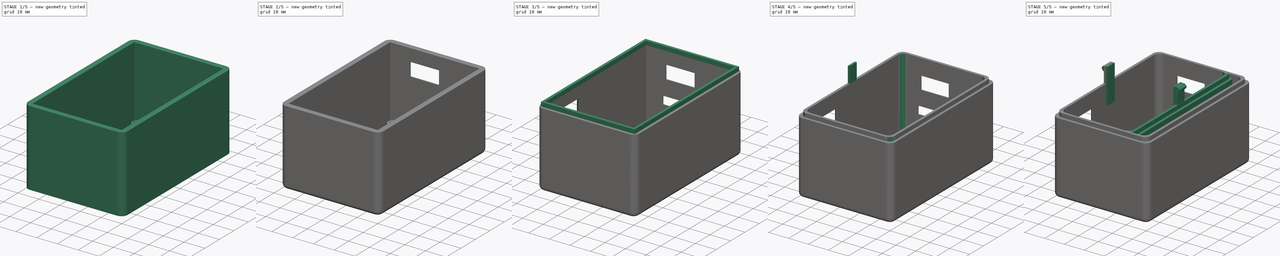
[diagram: build sequence overview — one tinted view per stage of 5, left to right]
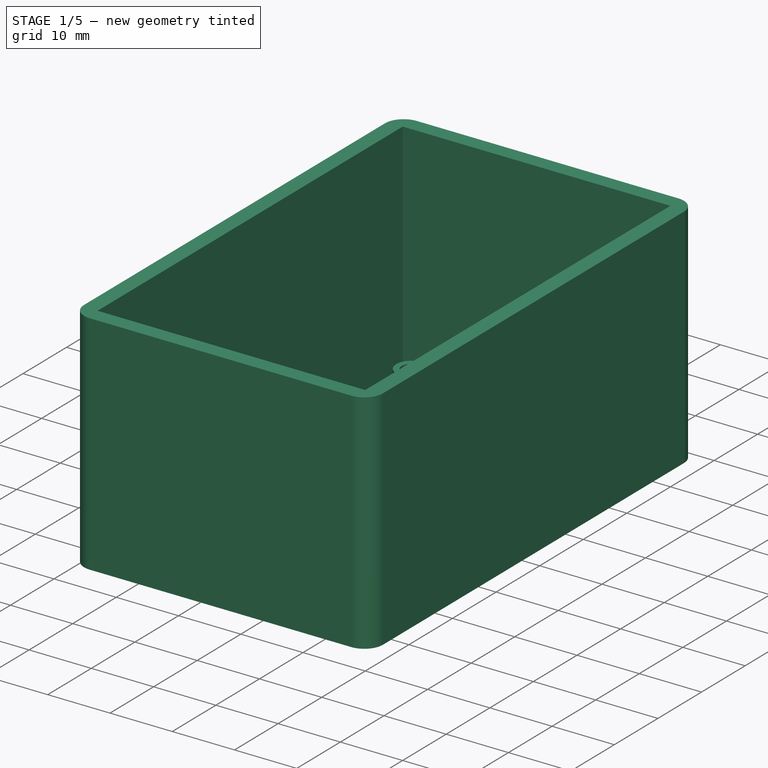
[diagram: stage 1 of 5 — iso view after this stage's code; geometry added in this stage tinted green]
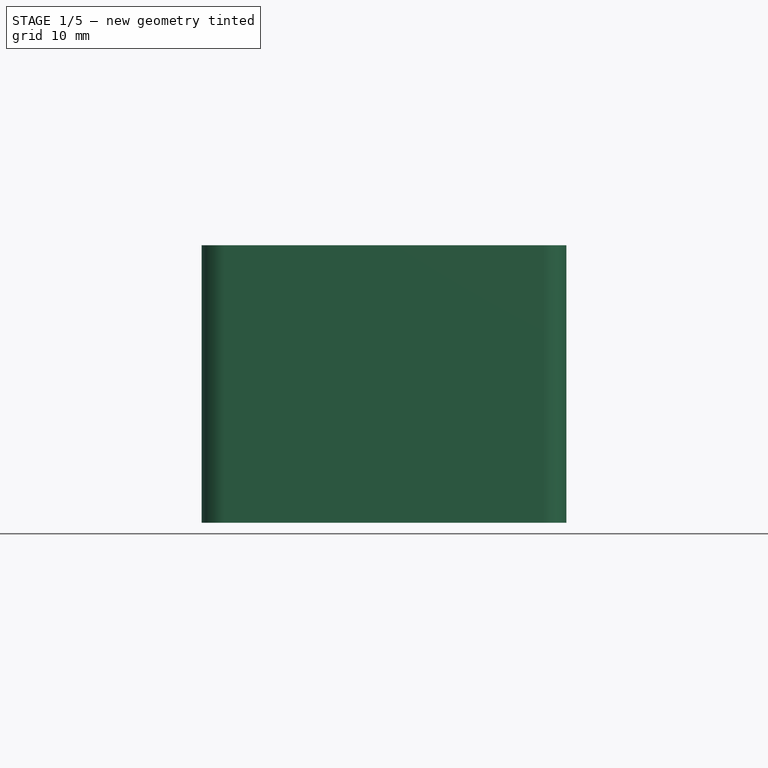
[diagram: stage 1 of 5 — front view after this stage's code; geometry added in this stage tinted green]
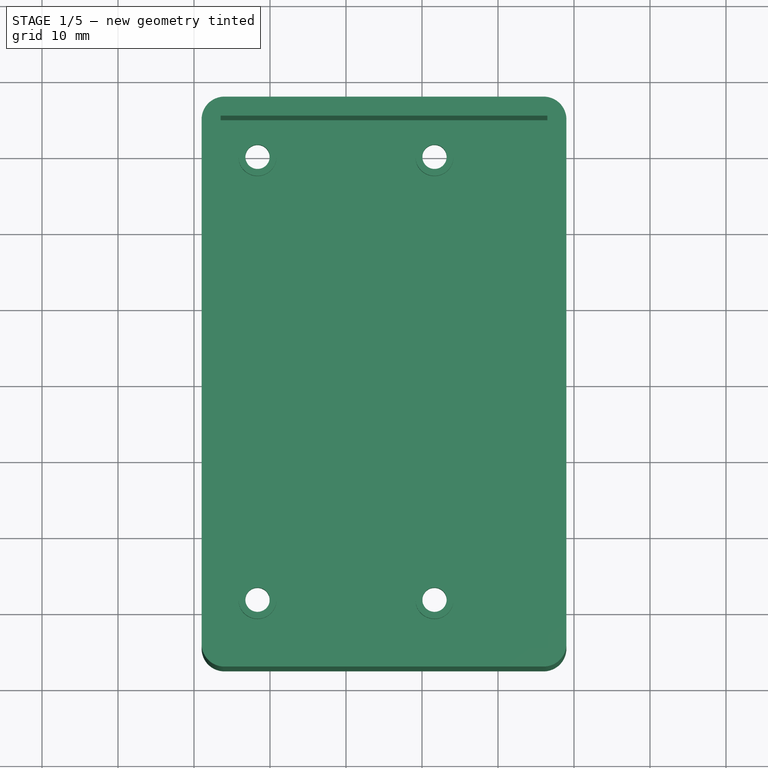
[diagram: stage 1 of 5 — top view after this stage's code; geometry added in this stage tinted green]
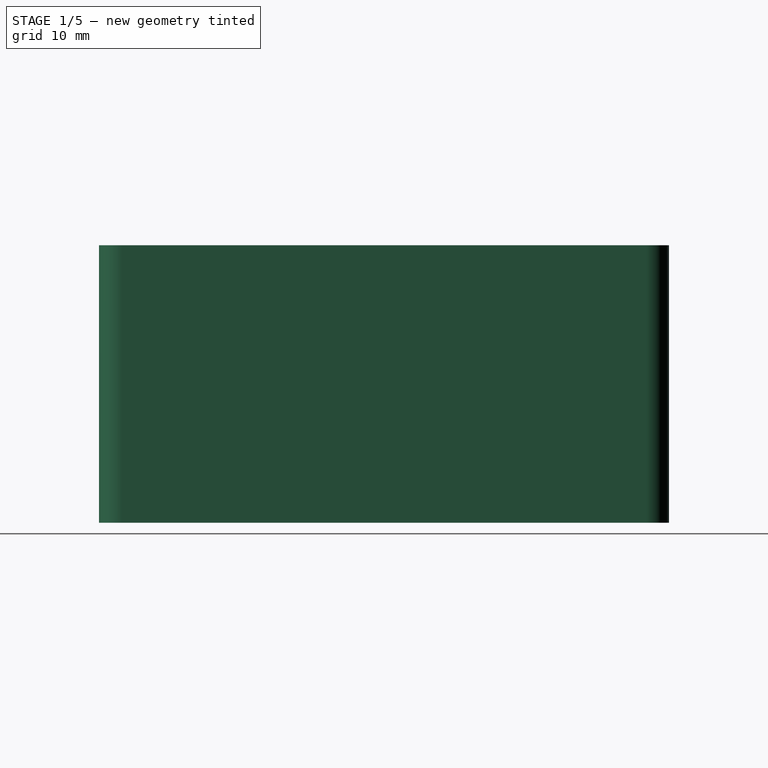
[diagram: stage 1 of 5 — right view after this stage's code; geometry added in this stage tinted green]
FCSTD DOCUMENT  (FreeCAD 0.16R)
Label: snap_case_bottom
License: All rights reserved
LicenseURL: http://en.wikipedia.org/wiki/All_rights_reserved
objects: Sketcher::SketchObject×11, PartDesign::Fillet×9, PartDesign::Pad×7, PartDesign::Pocket×7, PartDesign::Chamfer×6
note: 54 computed .brp shape members not serialized (recipe doc carries the construction recipe); baked Part::Feature solids carry a one-line shape summary decoded from their .brp

FEATURE [Sketcher::SketchObject] Sketch  label="base"
  sketch-geometry (8):
    g0: LineSegment [constr] StartX=-15 StartY=33.5 StartZ=0 EndX=15 EndY=33.5 EndZ=0
    g1: LineSegment [constr] StartX=15 StartY=33.5 StartZ=0 EndX=15 EndY=-33.5 EndZ=0
    g2: LineSegment [constr] StartX=15 StartY=-33.5 StartZ=0 EndX=-15 EndY=-33.5 EndZ=0
    g3: LineSegment [constr] StartX=-15 StartY=-33.5 StartZ=0 EndX=-15 EndY=33.5 EndZ=0
    g4: LineSegment StartX=-19 StartY=37.5 StartZ=0 EndX=29 EndY=37.5 EndZ=0
    g5: LineSegment StartX=29 StartY=37.5 StartZ=0 EndX=29 EndY=-37.5 EndZ=0
    g6: LineSegment StartX=29 StartY=-37.5 StartZ=0 EndX=-19 EndY=-37.5 EndZ=0
    g7: LineSegment StartX=-19 StartY=-37.5 StartZ=0 EndX=-19 EndY=37.5 EndZ=0
  constraints (24):
    c: Coincident(g0,g1)
    c: Coincident(g1,g2)
    c: Coincident(g2,g3)
    c: Coincident(g3,g0)
    c: Horizontal(g0)
    c: Horizontal(g2)
    c: Vertical(g1)
    c: Vertical(g3)
    c: Symmetric(g0,g0,g-2)
    c: Symmetric(g2,g0,g-1)
    c: DistanceX(g0,g0) = 30
    c: DistanceY(g3,g3) = 67
    c: Coincident(g4,g5)
    c: Coincident(g5,g6)
    c: Coincident(g6,g7)
    c: Coincident(g7,g4)
    c: Horizontal(g4)
    c: Horizontal(g6)
    c: Vertical(g5)
    c: Vertical(g7)
    c: DistanceX(g4,g4) = 48
    c: DistanceX(g4,g-1) = 19
    c: Symmetric(g4,g6,g-1)
    c: DistanceY(g7,g7) = 75
FEATURE [PartDesign::Pad] Pad
  Length = 1.5
  Length2 = 100
  Sketch = -> Sketch
  Type = 0
FEATURE [Sketcher::SketchObject] Sketch002  label="stand"
  Placement = pos=(0,0,1.5) rot=(0,0,1;0rad)
  Support = -> Pad [Face6]
  sketch-geometry (12):
    g0: LineSegment [constr] StartX=-15 StartY=33.5 StartZ=0 EndX=15 EndY=33.5 EndZ=0
    g1: LineSegment [constr] StartX=15 StartY=33.5 StartZ=0 EndX=15 EndY=-31.5 EndZ=0
    g2: LineSegment [constr] StartX=15 StartY=-31.5 StartZ=0 EndX=-15 EndY=-31.5 EndZ=0
    g3: LineSegment [constr] StartX=-15 StartY=-31.5 StartZ=0 EndX=-15 EndY=33.5 EndZ=0
    g4: LineSegment [constr] StartX=-15 StartY=33.5 StartZ=0 EndX=-11.6412 EndY=30.1412 EndZ=0
    g5: LineSegment [constr] StartX=15 StartY=33.5 StartZ=0 EndX=11.6412 EndY=30.1412 EndZ=0
    g6: LineSegment [constr] StartX=15 StartY=-31.5 StartZ=0 EndX=11.6412 EndY=-28.1412 EndZ=0
    g7: LineSegment [constr] StartX=-15 StartY=-31.5 StartZ=0 EndX=-11.6412 EndY=-28.1412 EndZ=0
    g8: Circle CenterX=-11.6412 CenterY=30.1412 CenterZ=0 NormalX=0 NormalY=0 NormalZ=1 Radius=2.5
    g9: Circle CenterX=-11.6412 CenterY=-28.1412 CenterZ=0 NormalX=0 NormalY=0 NormalZ=1 Radius=2.5
    g10: Circle CenterX=11.6412 CenterY=30.1412 CenterZ=0 NormalX=0 NormalY=0 NormalZ=1 Radius=2.5
    g11: Circle CenterX=11.6412 CenterY=-28.1412 CenterZ=0 NormalX=0 NormalY=0 NormalZ=1 Radius=2.5
  constraints (32):
    c: Coincident(g0,g1)
    c: Coincident(g1,g2)
    c: Coincident(g2,g3)
    c: Coincident(g3,g0)
    c: Horizontal(g0)
    c: Horizontal(g2)
    c: Vertical(g1)
    c: Vertical(g3)
    c: Symmetric(g0,g0,g-2)
    c: DistanceX(g0,g0) = 30
    c: DistanceY(g3,g3) = 65
    c: Coincident(g4,g0)
    c: Coincident(g5,g0)
    c: Coincident(g6,g1)
    c: Coincident(g7,g2)
    c: Equal(g4,g5)
    c: Equal(g5,g6)
    c: Equal(g6,g7)
    c: Distance(g6) = 4.75
    c: Coincident(g8,g4)
    c: Coincident(g9,g7)
    c: Coincident(g11,g6)
    c: Coincident(g10,g5)
    c: Angle(g0,g5) = 0.785398
    c: Angle(g4,g0) = 0.785398
    c: Angle(g2,g7) = 0.785398
    c: Angle(g6,g2) = 0.785398
    c: Equal(g11,g10)
    c: Equal(g8,g9)
    c: Radius(g10) = 2.5
    c: Equal(g10,g8)
    c: DistanceY(g-1,g0) = 33.5
FEATURE [PartDesign::Pad] Pad001
  Length = 3
  Length2 = 100
  Sketch = -> Sketch002
  Type = 0
FEATURE [Sketcher::SketchObject] Sketch003  label="screw holes"
  Placement = pos=(0,0,0) rot=(1,0,0;3.14159rad)
  Support = -> Pad001 [Face4]
  sketch-geometry (12):
    g0: LineSegment [constr] StartX=-15 StartY=31.5 StartZ=0 EndX=15 EndY=31.5 EndZ=0
    g1: LineSegment [constr] StartX=15 StartY=31.5 StartZ=0 EndX=15 EndY=-33.5 EndZ=0
    g2: LineSegment [constr] StartX=15 StartY=-33.5 StartZ=0 EndX=-15 EndY=-33.5 EndZ=0
    g3: LineSegment [constr] StartX=-15 StartY=-33.5 StartZ=0 EndX=-15 EndY=31.5 EndZ=0
    g4: LineSegment [constr] StartX=-15 StartY=31.5 StartZ=0 EndX=-11.6412 EndY=28.1412 EndZ=0
    g5: LineSegment [constr] StartX=15 StartY=31.5 StartZ=0 EndX=11.6412 EndY=28.1412 EndZ=0
    g6: LineSegment [constr] StartX=-15 StartY=-33.5 StartZ=0 EndX=-11.6412 EndY=-30.1412 EndZ=0
    g7: LineSegment [constr] StartX=15 StartY=-33.5 StartZ=0 EndX=11.6412 EndY=-30.1412 EndZ=0
    g8: Circle CenterX=-11.6412 CenterY=28.1412 CenterZ=0 NormalX=0 NormalY=0 NormalZ=1 Radius=1.6
    g9: Circle CenterX=11.6412 CenterY=28.1412 CenterZ=0 NormalX=0 NormalY=0 NormalZ=1 Radius=1.6
    g10: Circle CenterX=-11.6412 CenterY=-30.1412 CenterZ=0 NormalX=0 NormalY=0 NormalZ=1 Radius=1.6
    g11: Circle CenterX=11.6412 CenterY=-30.1412 CenterZ=0 NormalX=0 NormalY=0 NormalZ=1 Radius=1.6
  constraints (32):
    c: Coincident(g0,g1)
    c: Coincident(g1,g2)
    c: Coincident(g2,g3)
    c: Coincident(g3,g0)
    c: Horizontal(g0)
    c: Horizontal(g2)
    c: Vertical(g1)
    c: Vertical(g3)
    c: DistanceX(g0,g0) = 30
    c: DistanceY(g3,g3) = 65
    c: Symmetric(g0,g0,g-2)
    c: Coincident(g4,g0)
    c: Distance(g4) = 4.75
    c: Angle(g4,g0) = 0.785398
    c: Coincident(g5,g0)
    c: Distance(g5) = 4.75
    c: Angle(g0,g5) = 0.785398
    c: Coincident(g6,g2)
    c: Angle(g2,g6) = 0.785398
    c: Distance(g6) = 4.75
    c: Coincident(g7,g1)
    c: Distance(g7) = 4.75
    c: Angle(g7,g2) = 0.785398
    c: Equal(g11,g9)
    c: Equal(g9,g8)
    c: Equal(g8,g10)
    c: Radius(g9) = 1.6
    c: Coincident(g8,g4)
    c: Coincident(g9,g5)
    c: Coincident(g11,g7)
    c: Coincident(g10,g6)
    c: DistanceY(g1,g-1) = 33.5
FEATURE [PartDesign::Pocket] Pocket
  Length = 1
  Midplane = true
  Sketch = -> Sketch003
  Type = 1
FEATURE [Sketcher::SketchObject] Sketch004  label="wall"
  Placement = pos=(0,0,1.5) rot=(0,0,1;0rad)
  Support = -> Pocket [Face5]
  sketch-geometry (8):
    g0: LineSegment StartX=-19 StartY=37.5 StartZ=0 EndX=29 EndY=37.5 EndZ=0
    g1: LineSegment StartX=29 StartY=37.5 StartZ=0 EndX=29 EndY=-37.5 EndZ=0
    g2: LineSegment StartX=29 StartY=-37.5 StartZ=0 EndX=-19 EndY=-37.5 EndZ=0
    g3: LineSegment StartX=-19 StartY=-37.5 StartZ=0 EndX=-19 EndY=37.5 EndZ=0
    g4: LineSegment StartX=-16.5 StartY=35 StartZ=0 EndX=-16.5 EndY=-35 EndZ=0
    g5: LineSegment StartX=26.5 StartY=35 StartZ=0 EndX=26.5 EndY=-35 EndZ=0
    g6: LineSegment StartX=-16.5 StartY=35 StartZ=0 EndX=26.5 EndY=35 EndZ=0
    g7: LineSegment StartX=-16.5 StartY=-35 StartZ=0 EndX=26.5 EndY=-35 EndZ=0
  constraints (24):
    c: Coincident(g0,g1)
    c: Coincident(g1,g2)
    c: Coincident(g2,g3)
    c: Coincident(g3,g0)
    c: Horizontal(g0)
    c: Horizontal(g2)
    c: Vertical(g1)
    c: Vertical(g3)
    c: DistanceX(g0,g0) = 48
    c: DistanceY(g3,g3) = 75
    c: Symmetric(g0,g2,g-1)
    c: DistanceX(g0,g-1) = 19
    c: Vertical(g4)
    c: Symmetric(g4,g4,g-1)
    c: DistanceY(g4,g4) = 70
    c: DistanceX(g0,g4) = 2.5
    c: Vertical(g5)
    c: DistanceY(g5,g5) = 70
    c: Symmetric(g5,g5,g-1)
    c: DistanceX(g5,g0) = 2.5
    c: Coincident(g6,g4)
    c: Coincident(g6,g5)
    c: Coincident(g7,g4)
    c: Coincident(g7,g5)
FEATURE [PartDesign::Pad] Pad002
  Length = 35
  Length2 = 100
  Sketch = -> Sketch004
  Type = 0
FEATURE [PartDesign::Fillet] Fillet
  Base = -> Pad002 [Edge31,Edge15,Edge28,Edge12,Edge25,Edge9,Edge27,Edge11]
  Radius = 3
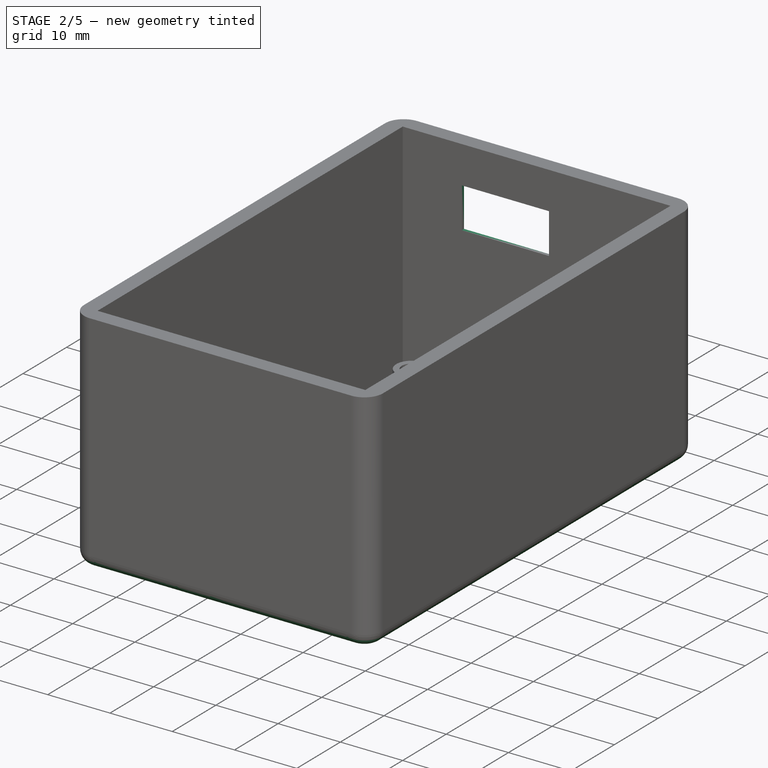
[diagram: stage 2 of 5 — iso view after this stage's code; geometry added in this stage tinted green]
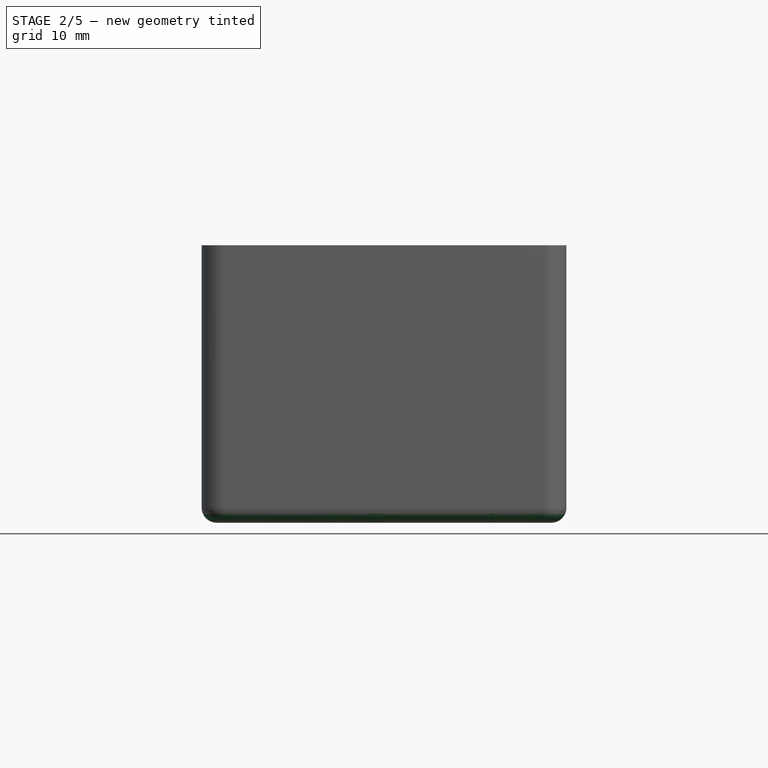
[diagram: stage 2 of 5 — front view after this stage's code; geometry added in this stage tinted green]
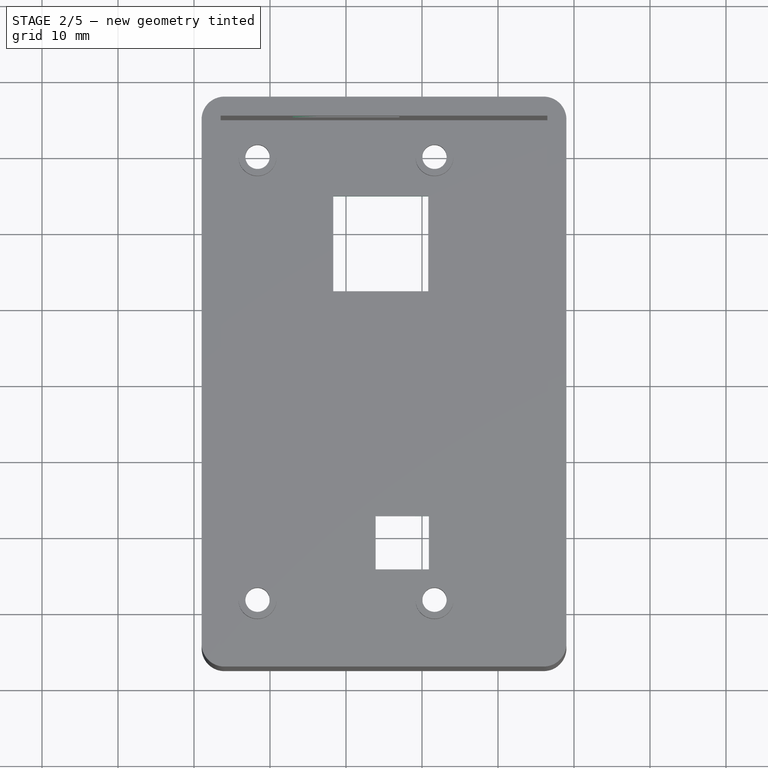
[diagram: stage 2 of 5 — top view after this stage's code; geometry added in this stage tinted green]
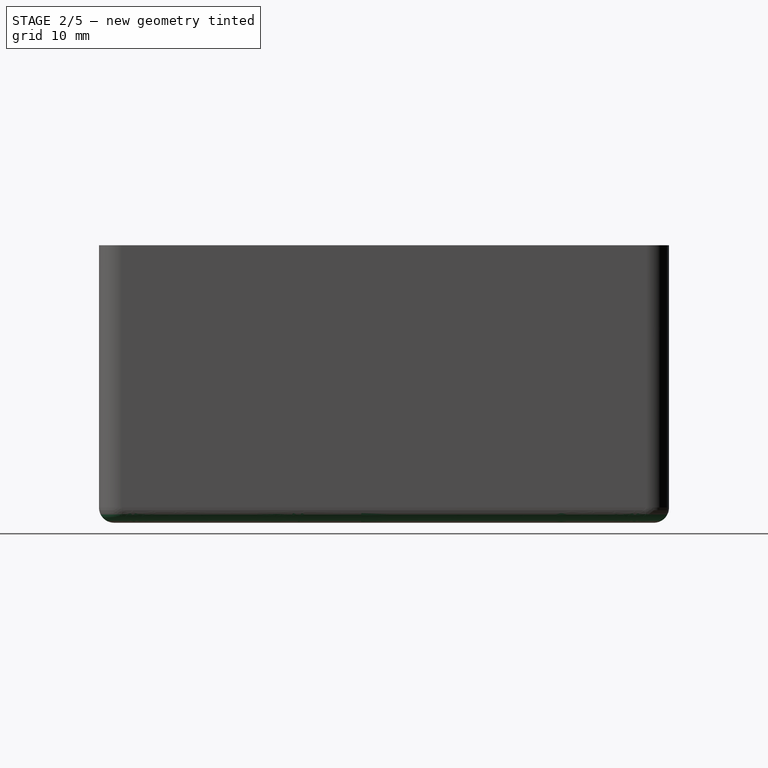
[diagram: stage 2 of 5 — right view after this stage's code; geometry added in this stage tinted green]
FEATURE [PartDesign::Fillet] Fillet001
  Base = -> Fillet [Edge1,Edge4,Edge2,Edge3,Edge5,Edge7,Edge8,Edge6]
  Radius = 2
FEATURE [Sketcher::SketchObject] Sketch005  label="power button"
  Placement = pos=(0,0,1.5) rot=(0,0,1;0rad)
  Support = -> Fillet001 [Face35]
  sketch-geometry (8):
    g0: LineSegment [constr] StartX=-15 StartY=33.5 StartZ=0 EndX=15 EndY=33.5 EndZ=0
    g1: LineSegment [constr] StartX=15 StartY=33.5 StartZ=0 EndX=15 EndY=-33.5 EndZ=0
    g2: LineSegment [constr] StartX=15 StartY=-33.5 StartZ=0 EndX=-15 EndY=-33.5 EndZ=0
    g3: LineSegment [constr] StartX=-15 StartY=-33.5 StartZ=0 EndX=-15 EndY=33.5 EndZ=0
    g4: LineSegment StartX=3.9 StartY=-17.1 StartZ=0 EndX=10.9 EndY=-17.1 EndZ=0
    g5: LineSegment StartX=10.9 StartY=-17.1 StartZ=0 EndX=10.9 EndY=-24.1 EndZ=0
    g6: LineSegment StartX=10.9 StartY=-24.1 StartZ=0 EndX=3.9 EndY=-24.1 EndZ=0
    g7: LineSegment StartX=3.9 StartY=-24.1 StartZ=0 EndX=3.9 EndY=-17.1 EndZ=0
  constraints (24):
    c: Coincident(g0,g1)
    c: Coincident(g1,g2)
    c: Coincident(g2,g3)
    c: Coincident(g3,g0)
    c: Horizontal(g0)
    c: Horizontal(g2)
    c: Vertical(g1)
    c: Vertical(g3)
    c: Symmetric(g0,g0,g-2)
    c: Symmetric(g0,g2,g-1)
    c: Coincident(g4,g5)
    c: Coincident(g5,g6)
    c: Coincident(g6,g7)
    c: Coincident(g7,g4)
    c: Horizontal(g4)
    c: Horizontal(g6)
    c: Vertical(g5)
    c: Vertical(g7)
    c: Equal(g6,g5)
    c: DistanceX(g4,g4) = 7
    c: DistanceX(g0,g0) = 30
    c: DistanceY(g3,g3) = 67
    c: DistanceX(g4,g1) = 4.1
    c: DistanceY(g1,g5) = 9.4
FEATURE [PartDesign::Pocket] Pocket001
  Length = 5
  Sketch = -> Sketch005
  Type = 1
FEATURE [PartDesign::Chamfer] Chamfer
  Base = -> Pocket001 [Edge11,Edge12,Edge13,Edge14]
  Size = 1
FEATURE [Sketcher::SketchObject] Sketch006  label="trigger hole"
  Placement = pos=(0,0,1.5) rot=(0,0,1;0rad)
  Support = -> Chamfer [Face34]
  sketch-geometry (8):
    g0: LineSegment [constr] StartX=-15 StartY=33.5 StartZ=0 EndX=15 EndY=33.5 EndZ=0
    g1: LineSegment [constr] StartX=15 StartY=33.5 StartZ=0 EndX=15 EndY=-33.5 EndZ=0
    g2: LineSegment [constr] StartX=15 StartY=-33.5 StartZ=0 EndX=-15 EndY=-33.5 EndZ=0
    g3: LineSegment [constr] StartX=-15 StartY=-33.5 StartZ=0 EndX=-15 EndY=33.5 EndZ=0
    g4: LineSegment StartX=-1.67 StartY=25 StartZ=0 EndX=10.83 EndY=25 EndZ=0
    g5: LineSegment StartX=10.83 StartY=25 StartZ=0 EndX=10.83 EndY=12.5 EndZ=0
    g6: LineSegment StartX=10.83 StartY=12.5 StartZ=0 EndX=-1.67 EndY=12.5 EndZ=0
    g7: LineSegment StartX=-1.67 StartY=12.5 StartZ=0 EndX=-1.67 EndY=25 EndZ=0
  constraints (24):
    c: Coincident(g0,g1)
    c: Coincident(g1,g2)
    c: Coincident(g2,g3)
    c: Coincident(g3,g0)
    c: Horizontal(g0)
    c: Horizontal(g2)
    c: Vertical(g1)
    c: Vertical(g3)
    c: DistanceX(g0,g0) = 30
    c: DistanceY(g3,g3) = 67
    c: Symmetric(g0,g0,g-2)
    c: Symmetric(g0,g2,g-1)
    c: Coincident(g4,g5)
    c: Coincident(g5,g6)
    c: Coincident(g6,g7)
    c: Coincident(g7,g4)
    c: Horizontal(g4)
    c: Horizontal(g6)
    c: Vertical(g5)
    c: Vertical(g7)
    c: Equal(g4,g7)
    c: DistanceX(g4,g4) = 12.5
    c: DistanceY(g6,g0) = 21
    c: DistanceX(g4,g0) = 16.67
FEATURE [PartDesign::Pocket] Pocket002
  Length = 5
  Sketch = -> Sketch006
  Type = 1
FEATURE [Sketcher::SketchObject] Sketch007  label="usb"
  Placement = pos=(0,37.5,0) rot=(0,0.707107,0.707107;3.14159rad)
  Support = -> Pocket002 [Face22]
  sketch-geometry (4):
    g0: LineSegment StartX=-7 StartY=30.5 StartZ=0 EndX=7 EndY=30.5 EndZ=0
    g1: LineSegment StartX=7 StartY=30.5 StartZ=0 EndX=7 EndY=24 EndZ=0
    g2: LineSegment StartX=7 StartY=24 StartZ=0 EndX=-7 EndY=24 EndZ=0
    g3: LineSegment StartX=-7 StartY=24 StartZ=0 EndX=-7 EndY=30.5 EndZ=0
  constraints (12):
    c: Coincident(g0,g1)
    c: Coincident(g1,g2)
    c: Coincident(g2,g3)
    c: Coincident(g3,g0)
    c: Horizontal(g0)
    c: Horizontal(g2)
    c: Vertical(g1)
    c: Vertical(g3)
    c: Symmetric(g0,g0,g-2)
    c: DistanceX(g0,g0) = 14
    c: DistanceY(g1,g1) = 6.5
    c: DistanceY(g-1,g2) = 24
FEATURE [PartDesign::Pocket] Pocket003
  Length = 5
  Sketch = -> Sketch007
  Type = 2
FEATURE [PartDesign::Chamfer] Chamfer001
  Base = -> Pocket003 [Edge67,Edge64,Edge65,Edge66]
  Size = 2
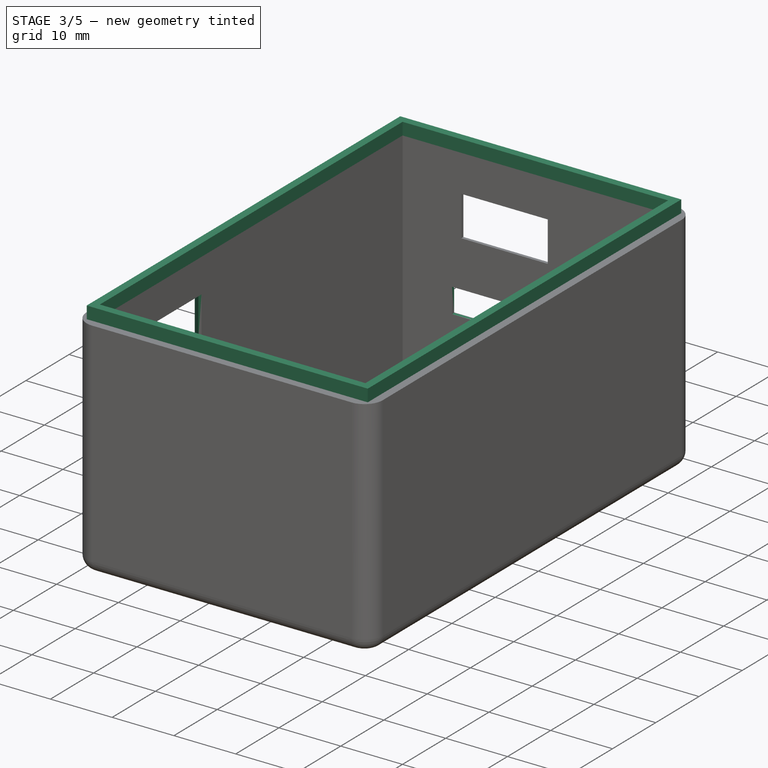
[diagram: stage 3 of 5 — iso view after this stage's code; geometry added in this stage tinted green]
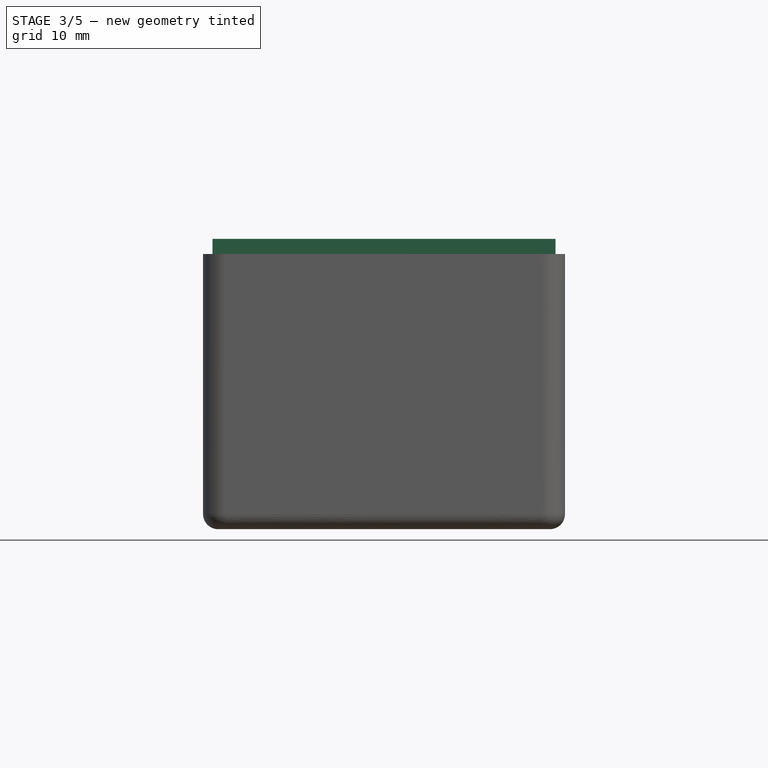
[diagram: stage 3 of 5 — front view after this stage's code; geometry added in this stage tinted green]
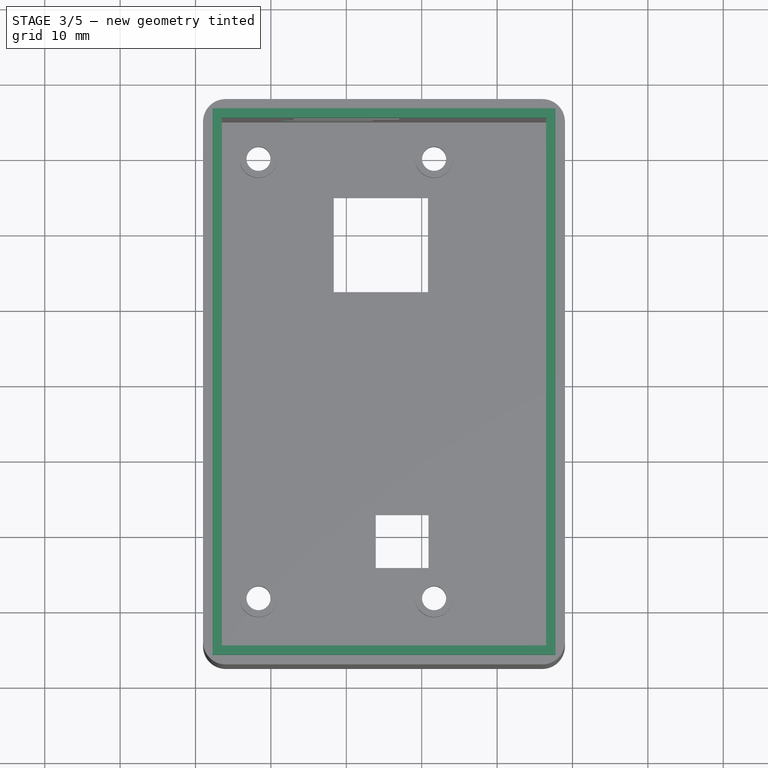
[diagram: stage 3 of 5 — top view after this stage's code; geometry added in this stage tinted green]
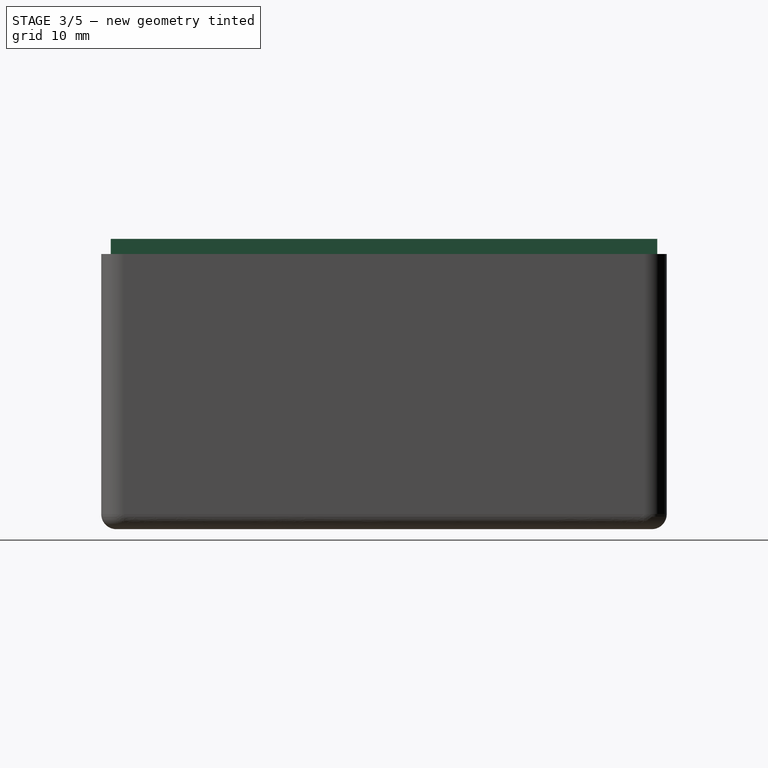
[diagram: stage 3 of 5 — right view after this stage's code; geometry added in this stage tinted green]
FEATURE [Sketcher::SketchObject] Sketch008  label="sd card"
  Placement = pos=(0,37.5,0) rot=(0,0.707107,0.707107;3.14159rad)
  Support = -> Chamfer001 [Face1]
  sketch-geometry (8):
    g0: LineSegment [constr] StartX=-15 StartY=54.5 StartZ=0 EndX=15 EndY=54.5 EndZ=0
    g1: LineSegment [constr] StartX=15 StartY=54.5 StartZ=0 EndX=15 EndY=4.5 EndZ=0
    g2: LineSegment [constr] StartX=15 StartY=4.5 StartZ=0 EndX=-15 EndY=4.5 EndZ=0
    g3: LineSegment [constr] StartX=-15 StartY=4.5 StartZ=0 EndX=-15 EndY=54.5 EndZ=0
    g4: LineSegment StartX=-3.5 StartY=16.5 StartZ=0 EndX=8.5 EndY=16.5 EndZ=0
    g5: LineSegment StartX=8.5 StartY=16.5 StartZ=0 EndX=8.5 EndY=12.5 EndZ=0
    g6: LineSegment StartX=8.5 StartY=12.5 StartZ=0 EndX=-3.5 EndY=12.5 EndZ=0
    g7: LineSegment StartX=-3.5 StartY=12.5 StartZ=0 EndX=-3.5 EndY=16.5 EndZ=0
  constraints (24):
    c: Coincident(g0,g1)
    c: Coincident(g1,g2)
    c: Coincident(g2,g3)
    c: Coincident(g3,g0)
    c: Horizontal(g0)
    c: Horizontal(g2)
    c: Vertical(g1)
    c: Vertical(g3)
    c: DistanceX(g0,g0) = 30
    c: Symmetric(g0,g0,g-2)
    c: DistanceY(g3,g3) = 50
    c: DistanceY(g2,g-1) = -4.5
    c: Coincident(g4,g5)
    c: Coincident(g5,g6)
    c: Coincident(g6,g7)
    c: Coincident(g7,g4)
    c: Horizontal(g4)
    c: Horizontal(g6)
    c: Vertical(g5)
    c: Vertical(g7)
    c: DistanceX(g4,g4) = 12
    c: DistanceY(g5,g5) = 4
    c: DistanceX(g4,g0) = 6.5
    c: DistanceY(g1,g5) = 8
FEATURE [PartDesign::Pocket] Pocket004
  Length = 5
  Sketch = -> Sketch008
  Type = 0
FEATURE [PartDesign::Chamfer] Chamfer002
  Base = -> Pocket004 [Edge7,Edge5,Edge8,Edge6]
  Size = 2
FEATURE [Sketcher::SketchObject] Sketch009  label="removable storage"
  Placement = pos=(-19,0,0) rot=(0.57735,-0.57735,-0.57735;2.0944rad)
  Support = -> Chamfer002 [Face19]
  sketch-geometry (8):
    g0: LineSegment [constr] StartX=-33.5 StartY=54.5 StartZ=0 EndX=33.5 EndY=54.5 EndZ=0
    g1: LineSegment [constr] StartX=33.5 StartY=54.5 StartZ=0 EndX=33.5 EndY=4.5 EndZ=0
    g2: LineSegment [constr] StartX=33.5 StartY=4.5 StartZ=0 EndX=-33.5 EndY=4.5 EndZ=0
    g3: LineSegment [constr] StartX=-33.5 StartY=4.5 StartZ=0 EndX=-33.5 EndY=54.5 EndZ=0
    g4: LineSegment StartX=11.5 StartY=24.5 StartZ=0 EndX=25.5 EndY=24.5 EndZ=0
    g5: LineSegment StartX=25.5 StartY=24.5 StartZ=0 EndX=25.5 EndY=31 EndZ=0
    g6: LineSegment StartX=25.5 StartY=31 StartZ=0 EndX=11.5 EndY=31 EndZ=0
    g7: LineSegment StartX=11.5 StartY=31 StartZ=0 EndX=11.5 EndY=24.5 EndZ=0
  constraints (24):
    c: Coincident(g0,g1)
    c: Coincident(g1,g2)
    c: Coincident(g2,g3)
    c: Coincident(g3,g0)
    c: Horizontal(g0)
    c: Horizontal(g2)
    c: Vertical(g1)
    c: Vertical(g3)
    c: DistanceX(g0,g0) = 67
    c: DistanceY(g3,g3) = 50
    c: Symmetric(g0,g0,g-2)
    c: DistanceY(g-1,g2) = 4.5
    c: Coincident(g4,g5)
    c: Coincident(g5,g6)
    c: Coincident(g6,g7)
    c: Coincident(g7,g4)
    c: Horizontal(g4)
    c: Horizontal(g6)
    c: Vertical(g5)
    c: Vertical(g7)
    c: DistanceX(g6,g6) = 14
    c: DistanceY(g5,g5) = 6.5
    c: DistanceY(g1,g4) = 20
    c: DistanceX(g4,g1) = 8
FEATURE [PartDesign::Pocket] Pocket005
  Length = 5
  Sketch = -> Sketch009
  Type = 2
FEATURE [PartDesign::Chamfer] Chamfer003
  Base = -> Pocket005 [Edge59,Edge60,Edge61,Edge62]
  Size = 2
FEATURE [Sketcher::SketchObject] Sketch010
  Placement = pos=(0,0,36.5) rot=(0,0,1;0rad)
  Support = -> Chamfer003 [Face8]
  sketch-geometry (8):
    g0: LineSegment StartX=-16.5 StartY=35 StartZ=0 EndX=26.5 EndY=35 EndZ=0
    g1: LineSegment StartX=26.5 StartY=35 StartZ=0 EndX=26.5 EndY=-35 EndZ=0
    g2: LineSegment StartX=26.5 StartY=-35 StartZ=0 EndX=-16.5 EndY=-35 EndZ=0
    g3: LineSegment StartX=-16.5 StartY=-35 StartZ=0 EndX=-16.5 EndY=35 EndZ=0
    g4: LineSegment StartX=-17.75 StartY=36.25 StartZ=0 EndX=27.75 EndY=36.25 EndZ=0
    g5: LineSegment StartX=27.75 StartY=36.25 StartZ=0 EndX=27.75 EndY=-36.25 EndZ=0
    g6: LineSegment StartX=27.75 StartY=-36.25 StartZ=0 EndX=-17.75 EndY=-36.25 EndZ=0
    g7: LineSegment StartX=-17.75 StartY=-36.25 StartZ=0 EndX=-17.75 EndY=36.25 EndZ=0
  constraints (24):
    c: Coincident(g0,g1)
    c: Coincident(g1,g2)
    c: Coincident(g2,g3)
    c: Coincident(g3,g0)
    c: Horizontal(g0)
    c: Horizontal(g2)
    c: Vertical(g1)
    c: Vertical(g3)
    c: DistanceX(g0,g0) = 43
    c: DistanceY(g1,g1) = 70
    c: Symmetric(g0,g1,g-1)
    c: DistanceX(g0,g-1) = 16.5
    c: Coincident(g4,g5)
    c: Coincident(g5,g6)
    c: Coincident(g6,g7)
    c: Coincident(g7,g4)
    c: Horizontal(g4)
    c: Horizontal(g6)
    c: Vertical(g5)
    c: Vertical(g7)
    c: DistanceY(g0,g4) = 1.25
    c: DistanceX(g4,g0) = 1.25
    c: DistanceX(g0,g4) = 1.25
    c: DistanceY(g5,g1) = 1.25
FEATURE [PartDesign::Pad] Pad003
  Length = 2
  Length2 = 100
  Sketch = -> Sketch010
  Type = 0
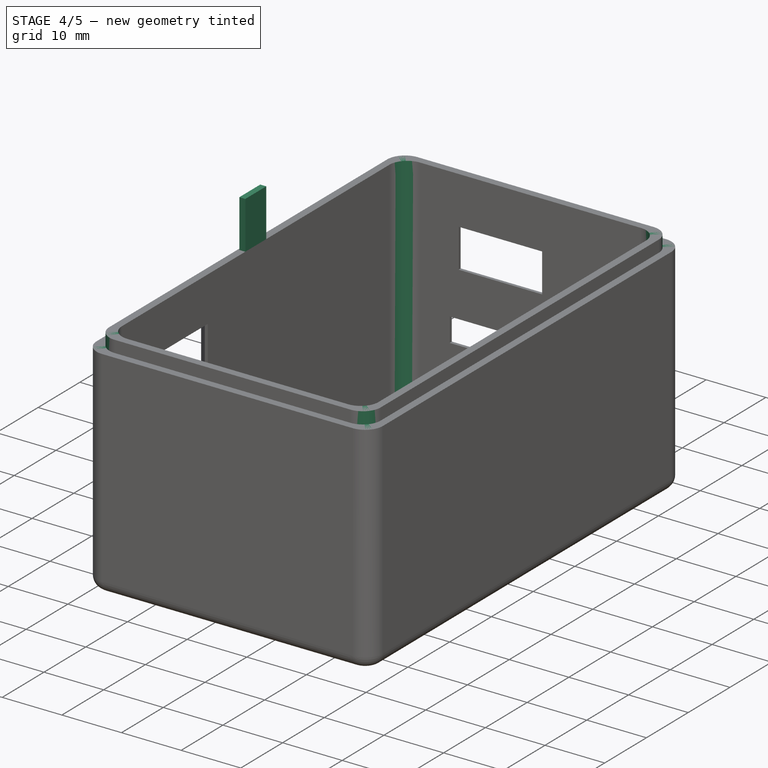
[diagram: stage 4 of 5 — iso view after this stage's code; geometry added in this stage tinted green]
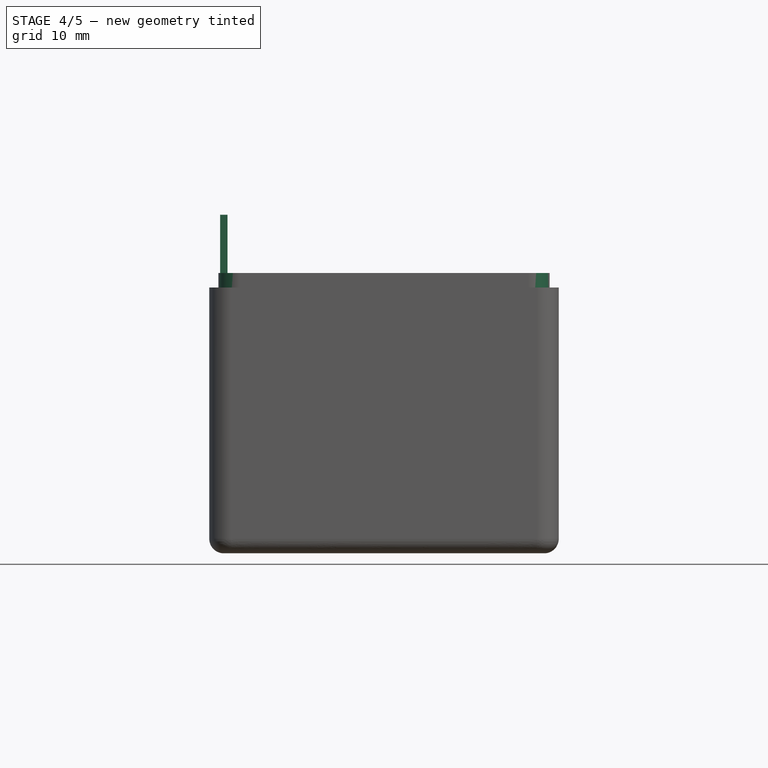
[diagram: stage 4 of 5 — front view after this stage's code; geometry added in this stage tinted green]
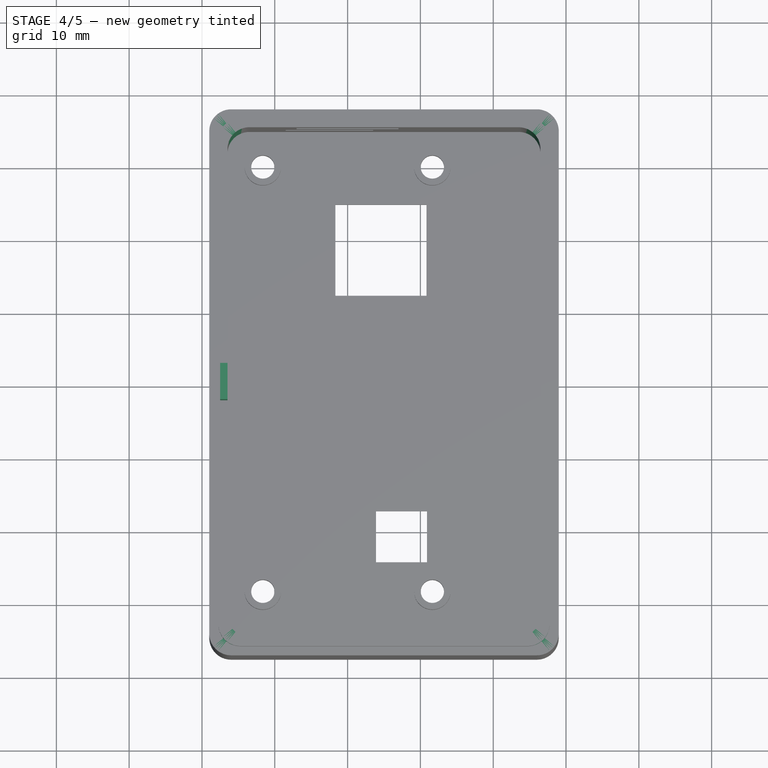
[diagram: stage 4 of 5 — top view after this stage's code; geometry added in this stage tinted green]
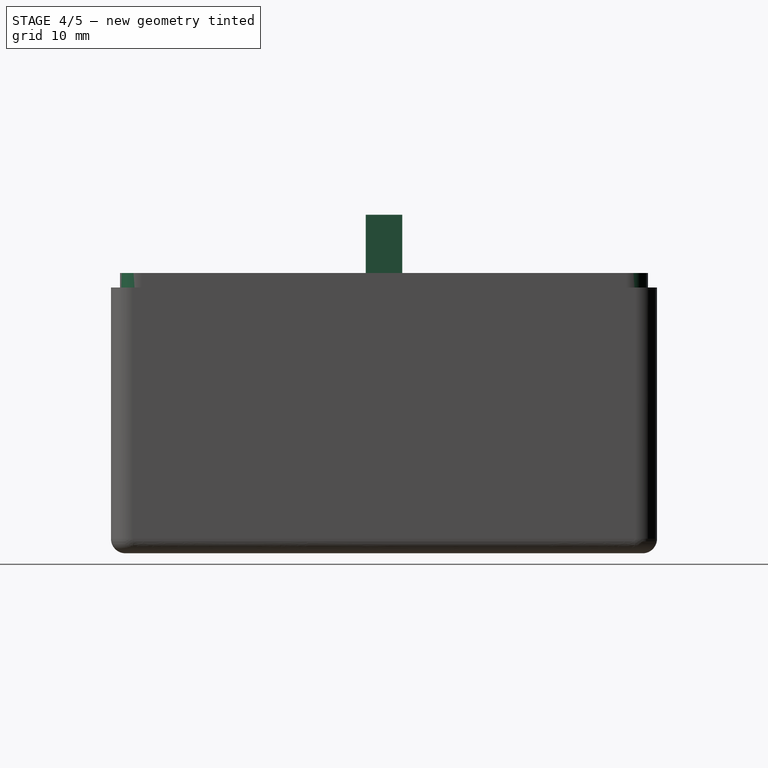
[diagram: stage 4 of 5 — right view after this stage's code; geometry added in this stage tinted green]
FEATURE [PartDesign::Fillet] Fillet002
  Base = -> Pad003 [Edge13,Edge11,Edge15,Edge9]
  Radius = 3
FEATURE [PartDesign::Fillet] Fillet003
  Base = -> Fillet002 [Edge34]
  Radius = 3
FEATURE [PartDesign::Fillet] Fillet004
  Base = -> Fillet003 [Edge22]
  Radius = 3
FEATURE [PartDesign::Fillet] Fillet005
  Base = -> Fillet004 [Edge23]
  Radius = 3
FEATURE [PartDesign::Pad] Pad004
  Length = 8
  Length2 = 100
  Type = 0
FEATURE [PartDesign::Fillet] Fillet007
  Base = -> Fillet002 [Edge10,Edge11,Edge9,Edge12]
  Radius = 3
FEATURE [PartDesign::Fillet] Fillet008
  Base = -> Fillet003 [Edge3,Edge1]
  Radius = 3
FEATURE [PartDesign::Pocket] Pocket006
  Length = 5
  Sketch = -> Sketch014
  Type = 1
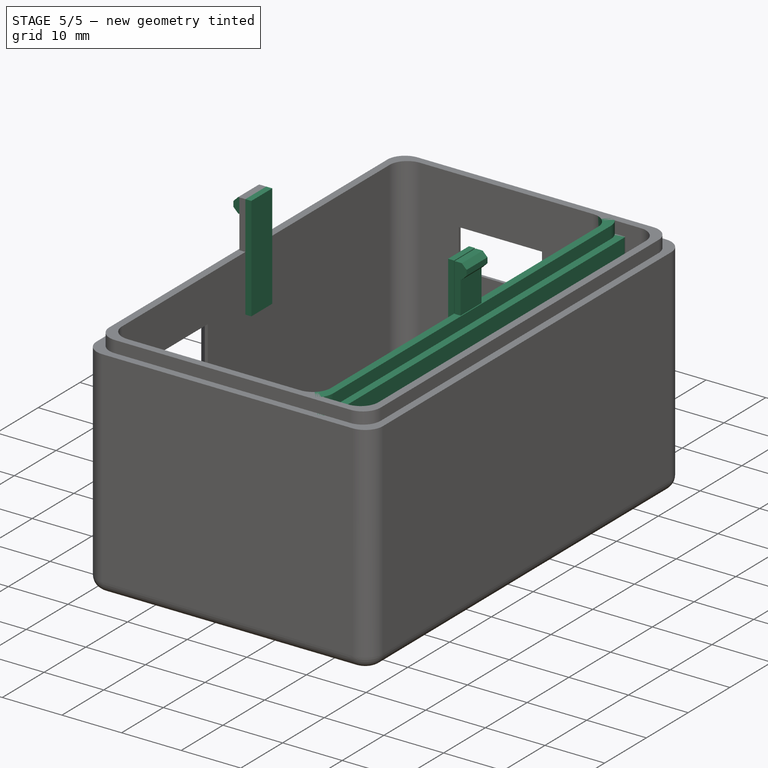
[diagram: stage 5 of 5 — iso view after this stage's code; geometry added in this stage tinted green]
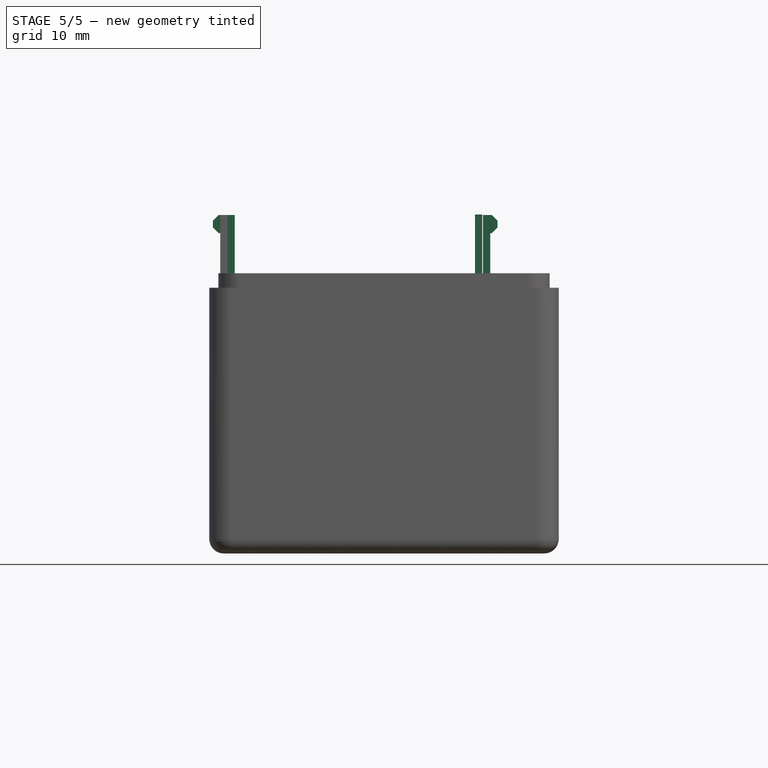
[diagram: stage 5 of 5 — front view after this stage's code; geometry added in this stage tinted green]
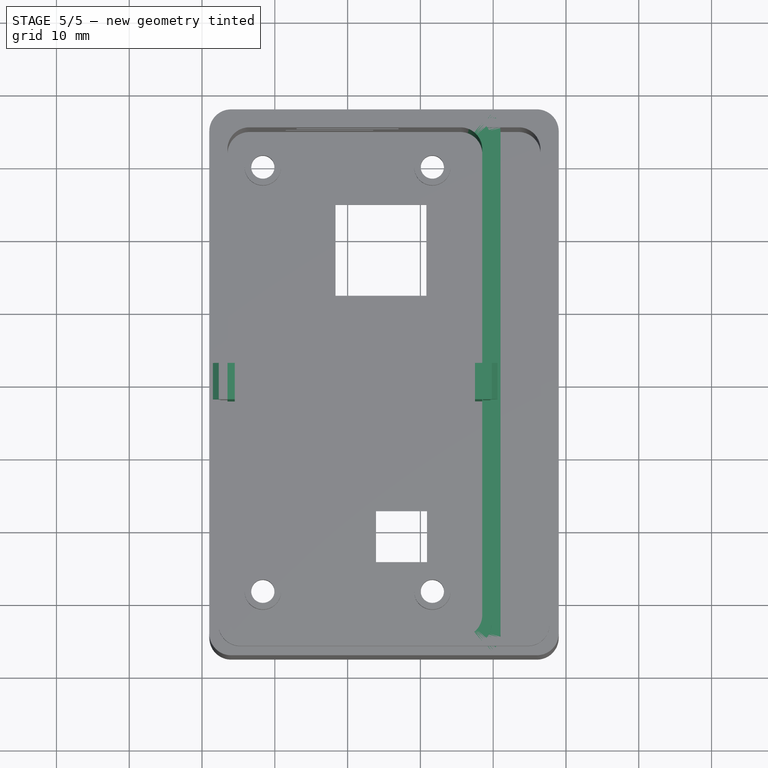
[diagram: stage 5 of 5 — top view after this stage's code; geometry added in this stage tinted green]
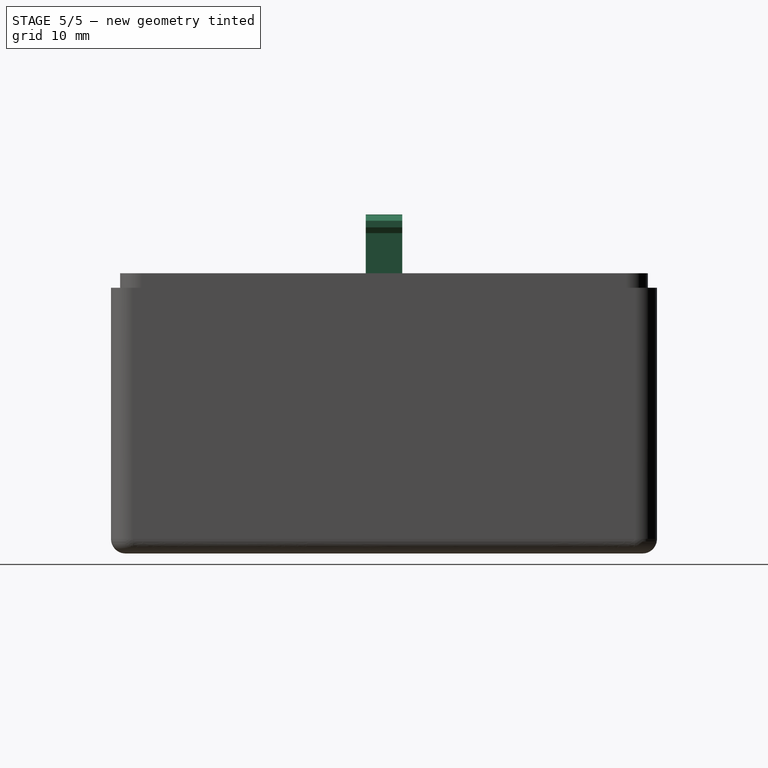
[diagram: stage 5 of 5 — right view after this stage's code; geometry added in this stage tinted green]
FEATURE [PartDesign::Fillet] Fillet006
  Base = -> Fillet005 [Edge24]
  Radius = 3
FEATURE [Sketcher::SketchObject] Sketch014
  Placement = pos=(0,0,0) rot=(1,0,0;3.14159rad)
  Support = -> Fillet005 [Face79]
  sketch-geometry (4):
    g0: LineSegment StartX=-7.5 StartY=25.5 StartZ=0 EndX=-1.5 EndY=25.5 EndZ=0
    g1: LineSegment StartX=-1.5 StartY=25.5 StartZ=0 EndX=-1.5 EndY=-27.5 EndZ=0
    g2: LineSegment StartX=-1.5 StartY=-27.5 StartZ=0 EndX=-7.5 EndY=-27.5 EndZ=0
    g3: LineSegment StartX=-7.5 StartY=-27.5 StartZ=0 EndX=-7.5 EndY=25.5 EndZ=0
  constraints (12):
    c: Coincident(g0,g1)
    c: Coincident(g1,g2)
    c: Coincident(g2,g3)
    c: Coincident(g3,g0)
    c: Horizontal(g0)
    c: Horizontal(g2)
    c: Vertical(g1)
    c: Vertical(g3)
    c: DistanceX(g0,g0) = 6
    c: DistanceY(g1,g1) = 53
    c: DistanceX(g0,g-1) = 1.5
    c: DistanceY(g-1,g0) = 25.5
FEATURE [PartDesign::Chamfer] Chamfer006
  Size = 0.8
FEATURE [PartDesign::Chamfer] Chamfer007
  Base = -> Chamfer006 [Edge117]
  Size = 0.8
FEATURE [PartDesign::Pad] Pad007
  Length = 1
  Length2 = 100
  Type = 0
FEATURE [PartDesign::Pad] Pad008
  Length = 1
  Length2 = 100
  Type = 0
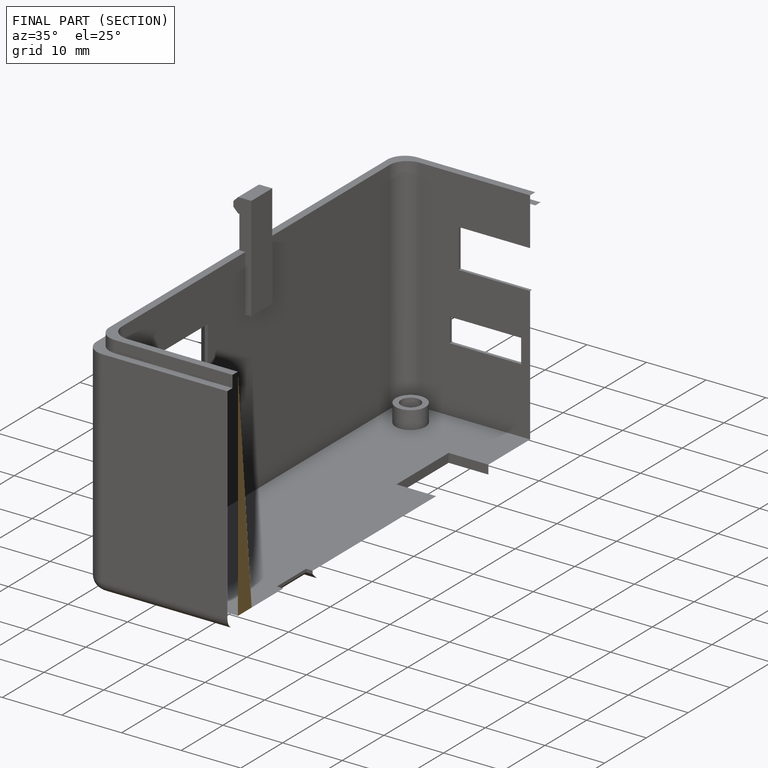
[diagram: finished part — half-section view (interior)]
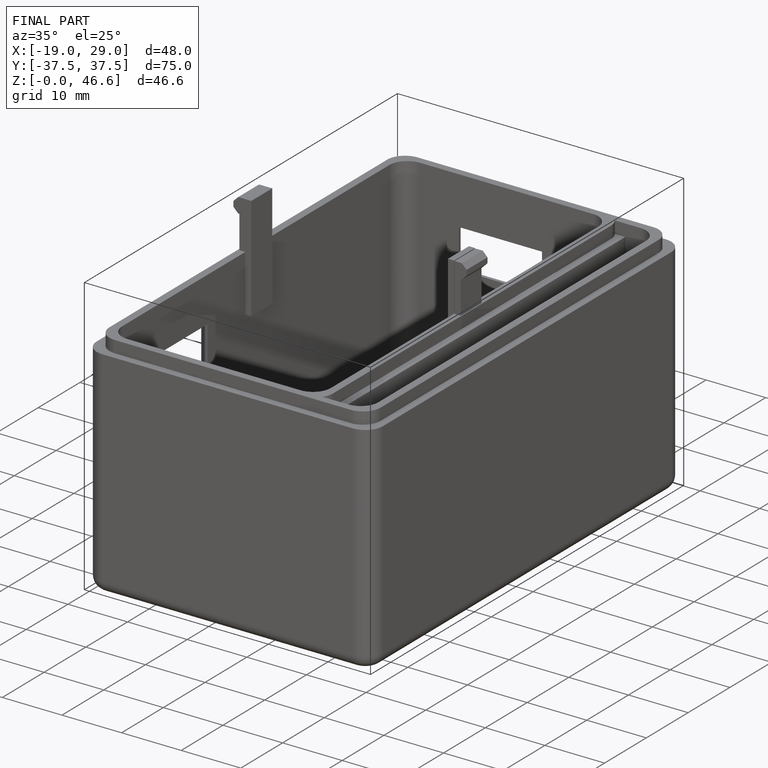
[diagram: finished part — iso view with bounding-box wireframe]
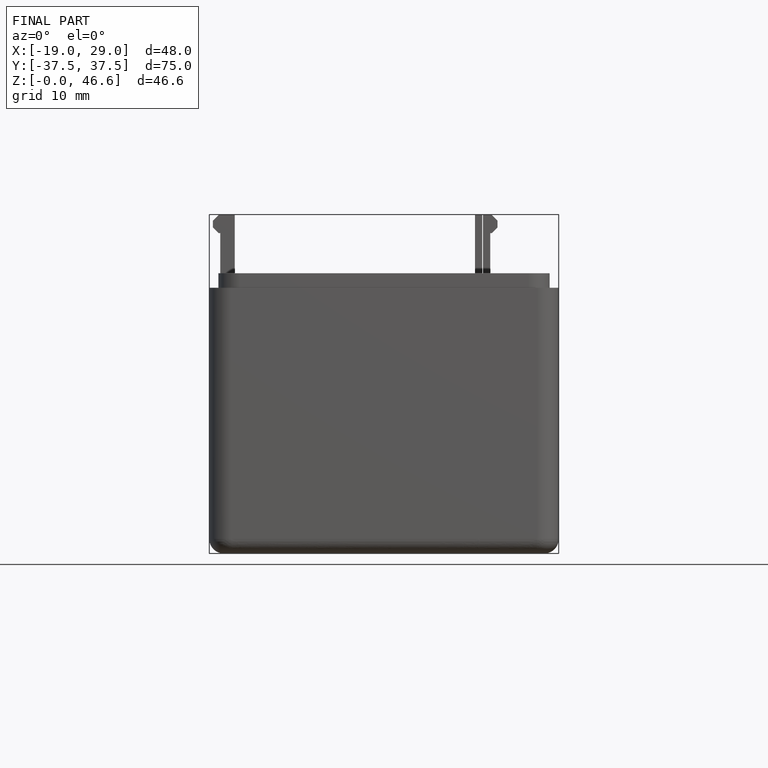
[diagram: finished part — front view with bounding-box wireframe]
